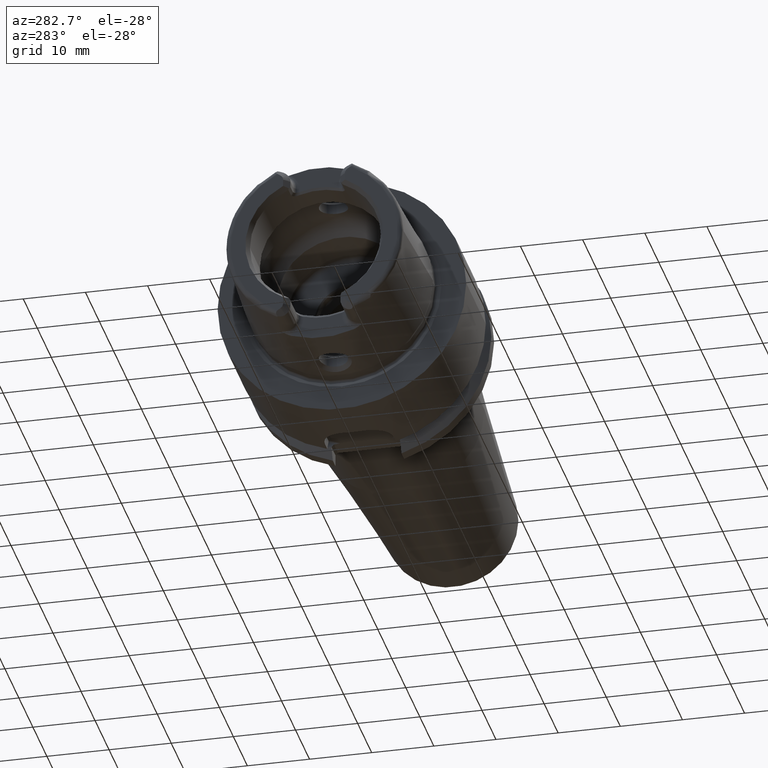
[diagram: clean part render]
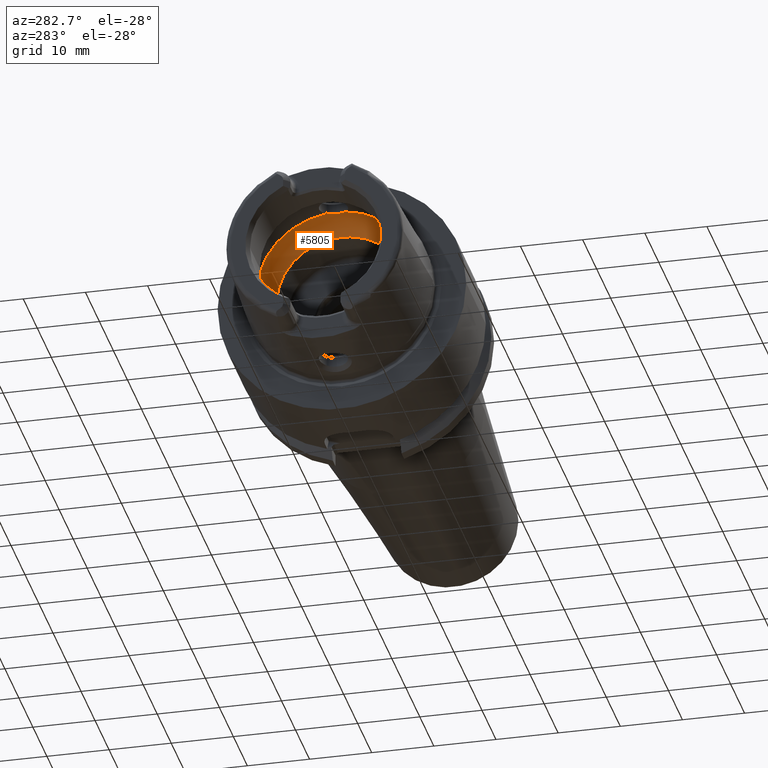
[diagram: same view with one face highlighted and labeled with its STEP entity id]
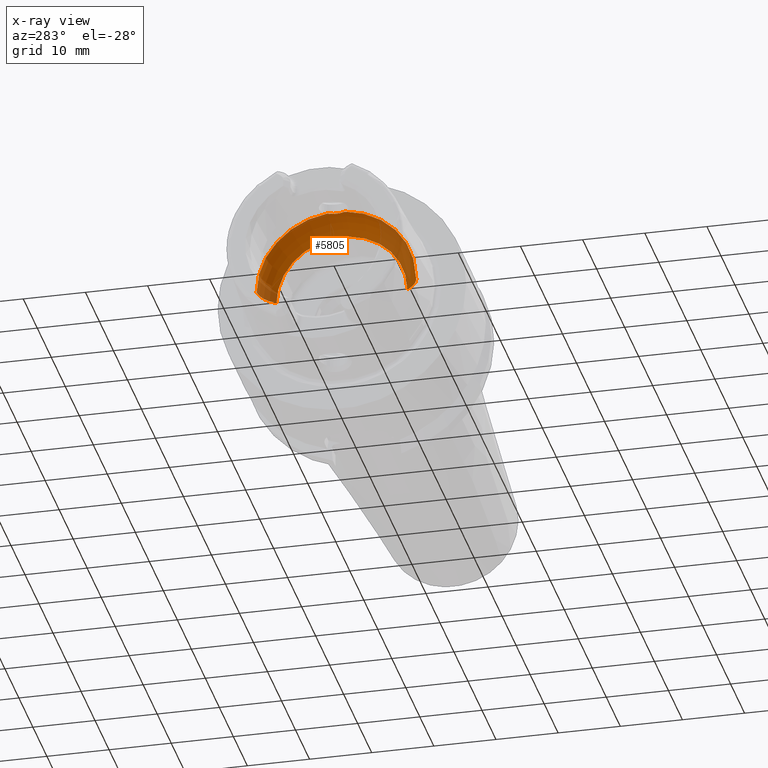
[diagram: x-ray of the same camera — body ghosted, the highlighted face saturated]
A machine part, auxiliary view. The second image highlights one B-rep face of the part: STEP entity #5805.
The next image is the same camera in x-ray: the body ghosted, the highlighted face saturated — about 24% of this face is hidden behind the body in this view.
In plain terms, the highlighted toroidal blend (fillet) surface has major radius 7.7825 mm and minor (blend) radius 5 mm.
Its self-contained STEP definition (entity closure, byte-faithful):
#2104=CARTESIAN_POINT('',(-3.7E0,0.E0,1.275908011166E1));
#2105=CARTESIAN_POINT('',(-3.7E0,9.570653978297E-2,1.275908011166E1));
#2106=CARTESIAN_POINT('',(-3.711768275161E0,2.909516364791E-1,
1.275811861485E1));
#2107=CARTESIAN_POINT('',(-3.771170566941E0,5.955218684762E-1,
1.275297374855E1));
#2108=CARTESIAN_POINT('',(-3.871323884973E0,8.895107200952E-1,
1.274331531770E1));
#2109=CARTESIAN_POINT('',(-4.011157528169E0,1.168708459096E0,1.272770896128E1));
#2110=CARTESIAN_POINT('',(-4.123309271483E0,1.333275303433E0,1.271301460470E1));
#2111=CARTESIAN_POINT('',(-4.183373967266E0,1.410627469318E0,1.270442585845E1));
#2113=CARTESIAN_POINT('',(-4.183373967266E0,-1.410627469318E0,
1.270442585845E1));
#2114=CARTESIAN_POINT('',(-4.108372544788E0,-1.314039575256E0,
1.271515043098E1));
#2115=CARTESIAN_POINT('',(-3.970996198063E0,-1.105634187539E0,
1.273269651012E1));
#2116=CARTESIAN_POINT('',(-3.812144904832E0,-7.456076452670E-1,
1.274930352975E1));
#2117=CARTESIAN_POINT('',(-3.718363500529E0,-3.641897993220E-1,
1.275759100964E1));
#2118=CARTESIAN_POINT('',(-3.7E0,-1.195142051433E-1,1.275908011166E1));
#2119=CARTESIAN_POINT('',(-3.7E0,0.E0,1.275908011166E1));
#2121=CARTESIAN_POINT('',(0.E0,0.E0,0.E0));
#2122=DIRECTION('',(1.E0,0.E0,0.E0));
#2123=DIRECTION('',(0.E0,1.E0,0.E0));
#2124=AXIS2_PLACEMENT_3D('',#2121,#2122,#2123);
#2143=CARTESIAN_POINT('',(-4.183373967266E0,0.E0,0.E0));
#2144=DIRECTION('',(1.E0,0.E0,0.E0));
#2145=DIRECTION('',(0.E0,1.E0,0.E0));
#2146=AXIS2_PLACEMENT_3D('',#2143,#2144,#2145);
#2148=CARTESIAN_POINT('',(-4.183373967266E0,0.E0,0.E0));
#2149=DIRECTION('',(1.E0,0.E0,0.E0));
#2150=DIRECTION('',(0.E0,-1.103561485873E-1,9.938921070564E-1));
#2151=AXIS2_PLACEMENT_3D('',#2148,#2149,#2150);
#2231=CARTESIAN_POINT('',(-4.183373967266E0,7.7825E0,0.E0));
#2232=DIRECTION('',(0.E0,0.E0,1.E0));
#2233=DIRECTION('',(8.366747934532E-1,5.477E-1,0.E0));
#2234=AXIS2_PLACEMENT_3D('',#2231,#2232,#2233);
#2241=CARTESIAN_POINT('',(-4.183373967266E0,-7.7825E0,0.E0));
#2242=DIRECTION('',(0.E0,0.E0,-1.E0));
#2243=DIRECTION('',(8.366747934532E-1,-5.477E-1,0.E0));
#2244=AXIS2_PLACEMENT_3D('',#2241,#2242,#2243);
#3036=CARTESIAN_POINT('',(-3.7E0,0.E0,1.275908011166E1));
#3037=VERTEX_POINT('',#3036);
#3058=CARTESIAN_POINT('',(0.E0,1.0521E1,0.E0));
#3059=VERTEX_POINT('',#3058);
#3060=CARTESIAN_POINT('',(-4.183373967266E0,1.27825E1,0.E0));
#3061=VERTEX_POINT('',#3060);
#3070=CARTESIAN_POINT('',(0.E0,-1.0521E1,0.E0));
#3071=VERTEX_POINT('',#3070);
#3072=CARTESIAN_POINT('',(-4.183373967266E0,-1.27825E1,0.E0));
#3073=VERTEX_POINT('',#3072);
#3090=VERTEX_POINT('',#2111);
#3091=VERTEX_POINT('',#2113);
#5786=CARTESIAN_POINT('',(-4.183373967266E0,0.E0,0.E0));
#5787=DIRECTION('',(1.E0,0.E0,0.E0));
#5788=DIRECTION('',(0.E0,-1.E0,0.E0));
#5789=AXIS2_PLACEMENT_3D('',#5786,#5787,#5788);
#5790=TOROIDAL_SURFACE('',#5789,7.7825E0,5.E0);
#5791=ORIENTED_EDGE('',*,*,#5763,.F.);
#5792=ORIENTED_EDGE('',*,*,#5553,.F.);
#5794=ORIENTED_EDGE('',*,*,#5793,.T.);
#5796=ORIENTED_EDGE('',*,*,#5795,.F.);
#5798=ORIENTED_EDGE('',*,*,#5797,.F.);
#5800=ORIENTED_EDGE('',*,*,#5799,.T.);
#5802=ORIENTED_EDGE('',*,*,#5801,.T.);
#5803=EDGE_LOOP('',(#5791,#5792,#5794,#5796,#5798,#5800,#5802));
#5804=FACE_OUTER_BOUND('',#5803,.F.);
#5805=ADVANCED_FACE('',(#5804),#5790,.F.);
#2112=B_SPLINE_CURVE_WITH_KNOTS('',3,(#2104,#2105,#2106,#2107,#2108,#2109,#2110,
#2111),.UNSPECIFIED.,.F.,.F.,(4,1,1,1,1,4),(0.E0,2.E-1,4.E-1,6.E-1,8.E-1,1.E0),
.UNSPECIFIED.);
#2120=B_SPLINE_CURVE_WITH_KNOTS('',3,(#2113,#2114,#2115,#2116,#2117,#2118,
#2119),.UNSPECIFIED.,.F.,.F.,(4,1,1,1,4),(0.E0,2.5E-1,5.E-1,7.5E-1,1.E0),
.UNSPECIFIED.);
#2125=CIRCLE('',#2124,1.0521E1);
#2147=CIRCLE('',#2146,1.27825E1);
#2152=CIRCLE('',#2151,1.27825E1);
#2235=CIRCLE('',#2234,5.E0);
#2245=CIRCLE('',#2244,5.E0);
#5553=EDGE_CURVE('',#3091,#3037,#2120,.T.);
#5763=EDGE_CURVE('',#3037,#3090,#2112,.T.);
#5793=EDGE_CURVE('',#3091,#3073,#2152,.T.);
#5795=EDGE_CURVE('',#3071,#3073,#2245,.T.);
#5797=EDGE_CURVE('',#3059,#3071,#2125,.T.);
#5799=EDGE_CURVE('',#3059,#3061,#2235,.T.);
#5801=EDGE_CURVE('',#3061,#3090,#2147,.T.);